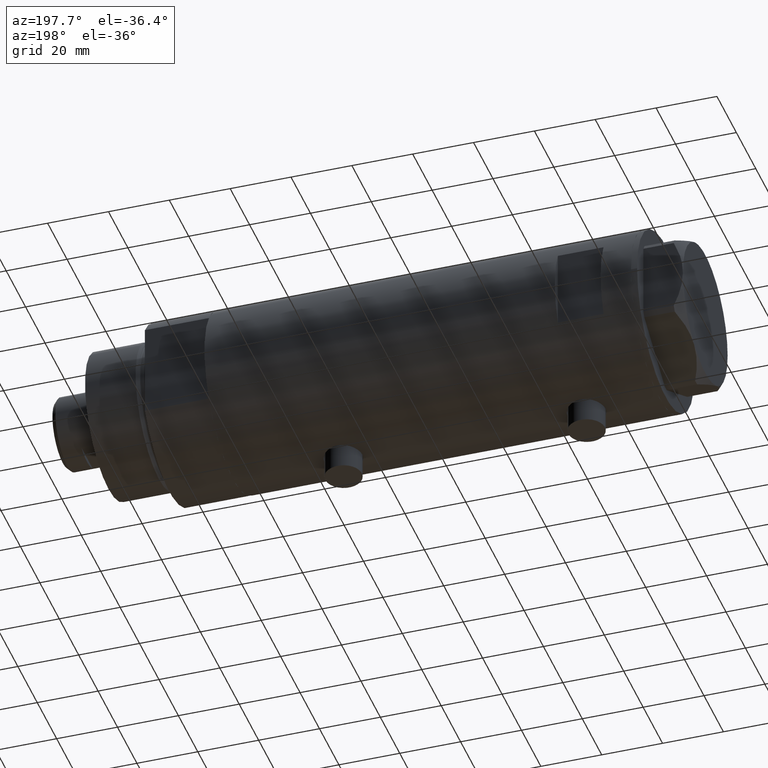
[diagram: clean part render]
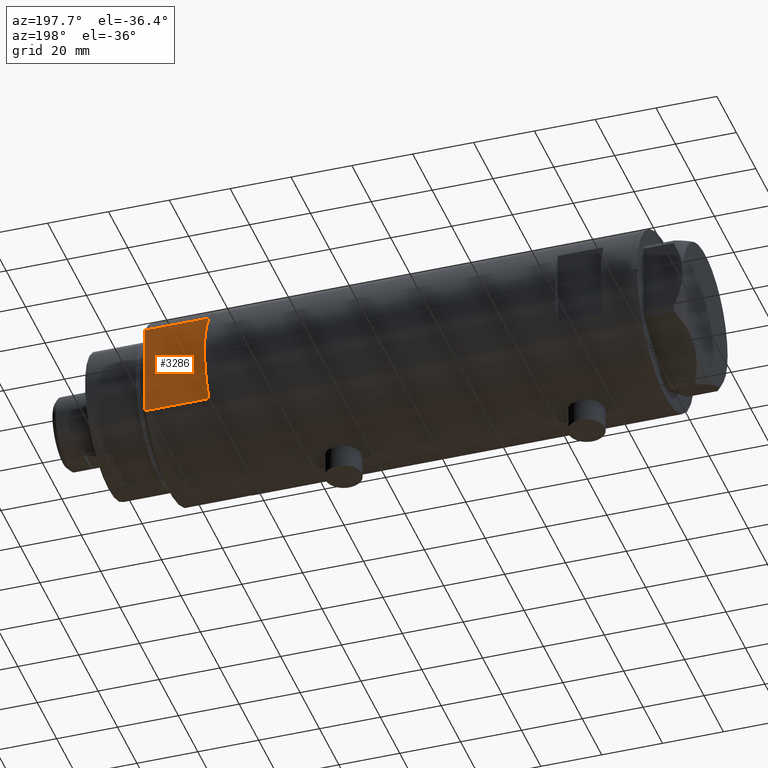
[diagram: same view with one face highlighted and labeled with its STEP entity id]
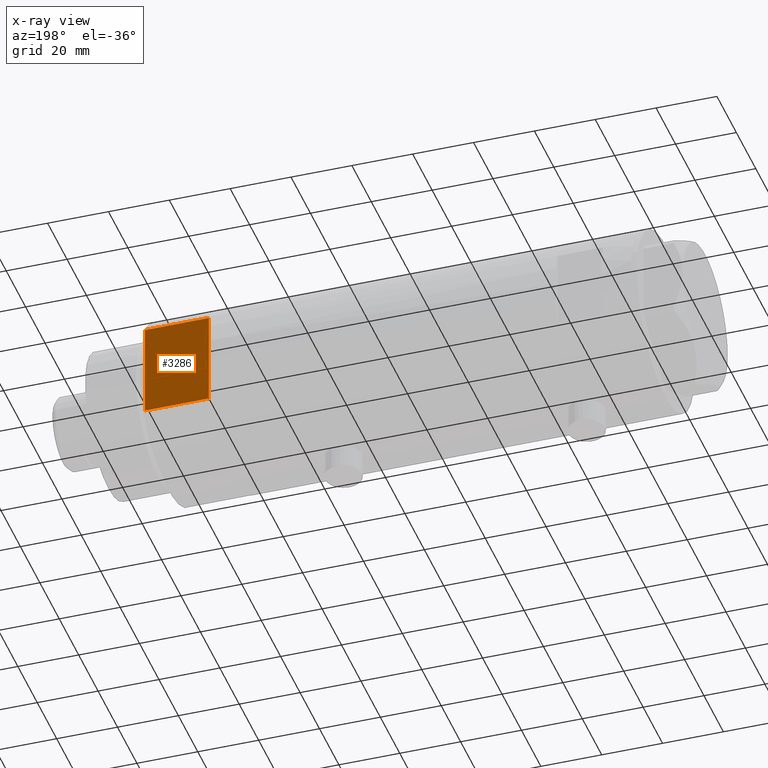
[diagram: x-ray of the same camera — body ghosted, the highlighted face saturated]
A machine part, auxiliary view. The second image highlights one B-rep face of the part: STEP entity #3286.
The next image is the same camera in x-ray: the body ghosted, the highlighted face saturated — about 0% of this face is hidden behind the body in this view.
In plain terms, the highlighted planar face has unit normal (0, -1, -0).
Its self-contained STEP definition (entity closure, byte-faithful):
#41 = ORIENTED_EDGE ( 'NONE', *, *, #417, .F. ) ;
#56 = CARTESIAN_POINT ( 'NONE',  ( 15.66045976336582690, 25.00000000000000000, 0.000000000000000000 ) ) ;
#212 = CARTESIAN_POINT ( 'NONE',  ( -15.66045976336583401, 25.00000000000000000, 0.000000000000000000 ) ) ;
#417 = EDGE_CURVE ( 'NONE', #1454, #1900, #1676, .T. ) ;
#451 = VECTOR ( 'NONE', #3499, 1000.000000000000000 ) ;
#500 = CARTESIAN_POINT ( 'NONE',  ( -7.141428428542853091, 25.00000000000000000, 0.000000000000000000 ) ) ;
#631 = PLANE ( 'NONE',  #2710 ) ;
#698 = FACE_OUTER_BOUND ( 'NONE', #2137, .T. ) ;
#877 = LINE ( 'NONE', #4224, #2122 ) ;
#885 = ORIENTED_EDGE ( 'NONE', *, *, #2084, .T. ) ;
#1091 = LINE ( 'NONE', #3436, #451 ) ;
#1154 = CARTESIAN_POINT ( 'NONE',  ( 15.66045976336583045, 24.99999999999999645, 20.99999999999999645 ) ) ;
#1212 = VERTEX_POINT ( 'NONE', #2672 ) ;
#1365 = EDGE_CURVE ( 'NONE', #4190, #1388, #1091, .T. ) ;
#1388 = VERTEX_POINT ( 'NONE', #1154 ) ;
#1454 = VERTEX_POINT ( 'NONE', #500 ) ;
#1676 = LINE ( 'NONE', #3422, #3055 ) ;
#1877 = EDGE_CURVE ( 'NONE', #1212, #2156, #2260, .T. ) ;
#1900 = VERTEX_POINT ( 'NONE', #2908 ) ;
#2014 = DIRECTION ( 'NONE',  ( 1.000000000000000000, 0.000000000000000000, 0.000000000000000000 ) ) ;
#2033 = DIRECTION ( 'NONE',  ( 0.000000000000000000, -1.000000000000000000, 0.000000000000000000 ) ) ;
#2037 = ORIENTED_EDGE ( 'NONE', *, *, #2939, .F. ) ;
#2078 = DIRECTION ( 'NONE',  ( 0.000000000000000000, -0.000000000000000000, -1.000000000000000000 ) ) ;
#2084 = EDGE_CURVE ( 'NONE', #2156, #1388, #877, .T. ) ;
#2122 = VECTOR ( 'NONE', #4289, 1000.000000000000000 ) ;
#2137 = EDGE_LOOP ( 'NONE', ( #885, #4302, #2924, #41, #2037, #2467 ) ) ;
#2156 = VERTEX_POINT ( 'NONE', #2902 ) ;
#2260 = LINE ( 'NONE', #212, #3834 ) ;
#2467 = ORIENTED_EDGE ( 'NONE', *, *, #1877, .T. ) ;
#2672 = CARTESIAN_POINT ( 'NONE',  ( -15.66045976336583401, 25.00000000000000000, 0.000000000000000000 ) ) ;
#2710 = AXIS2_PLACEMENT_3D ( 'NONE', #4409, #2033, #2078 ) ;
#2902 = CARTESIAN_POINT ( 'NONE',  ( -15.66045976336583045, 24.99999999999999645, 21.00000000000000355 ) ) ;
#2908 = CARTESIAN_POINT ( 'NONE',  ( 7.141428428542853091, 25.00000000000000000, 0.000000000000000000 ) ) ;
#2915 = DIRECTION ( 'NONE',  ( 1.000000000000000000, 0.000000000000000000, 0.000000000000000000 ) ) ;
#2924 = ORIENTED_EDGE ( 'NONE', *, *, #3744, .F. ) ;
#2926 = VECTOR ( 'NONE', #2915, 1000.000000000000000 ) ;
#2939 = EDGE_CURVE ( 'NONE', #1212, #1454, #3231, .T. ) ;
#3055 = VECTOR ( 'NONE', #3719, 1000.000000000000000 ) ;
#3231 = LINE ( 'NONE', #4207, #2926 ) ;
#3271 = DIRECTION ( 'NONE',  ( -0.000000000000000000, -0.000000000000000000, 1.000000000000000000 ) ) ;
#3286 = ADVANCED_FACE ( 'NONE', ( #698 ), #631, .F. ) ;
#3389 = CARTESIAN_POINT ( 'NONE',  ( -15.66045976336583401, 25.00000000000000000, 0.000000000000000000 ) ) ;
#3422 = CARTESIAN_POINT ( 'NONE',  ( -15.66045976336583401, 25.00000000000000000, 0.000000000000000000 ) ) ;
#3436 = CARTESIAN_POINT ( 'NONE',  ( 15.66045976336583401, 25.00000000000000000, 0.000000000000000000 ) ) ;
#3499 = DIRECTION ( 'NONE',  ( -0.000000000000000000, -0.000000000000000000, 1.000000000000000000 ) ) ;
#3719 = DIRECTION ( 'NONE',  ( 1.000000000000000000, 0.000000000000000000, 0.000000000000000000 ) ) ;
#3740 = LINE ( 'NONE', #3389, #4072 ) ;
#3744 = EDGE_CURVE ( 'NONE', #1900, #4190, #3740, .T. ) ;
#3834 = VECTOR ( 'NONE', #3271, 1000.000000000000000 ) ;
#4072 = VECTOR ( 'NONE', #2014, 1000.000000000000000 ) ;
#4190 = VERTEX_POINT ( 'NONE', #56 ) ;
#4207 = CARTESIAN_POINT ( 'NONE',  ( -15.66045976336583401, 25.00000000000000000, 0.000000000000000000 ) ) ;
#4224 = CARTESIAN_POINT ( 'NONE',  ( -15.66045976336583401, 25.00000000000000000, 21.00000000000000000 ) ) ;
#4289 = DIRECTION ( 'NONE',  ( 1.000000000000000000, 0.000000000000000000, 0.000000000000000000 ) ) ;
#4302 = ORIENTED_EDGE ( 'NONE', *, *, #1365, .F. ) ;
#4409 = CARTESIAN_POINT ( 'NONE',  ( -15.66045976336583401, 25.00000000000000000, 0.000000000000000000 ) ) ;